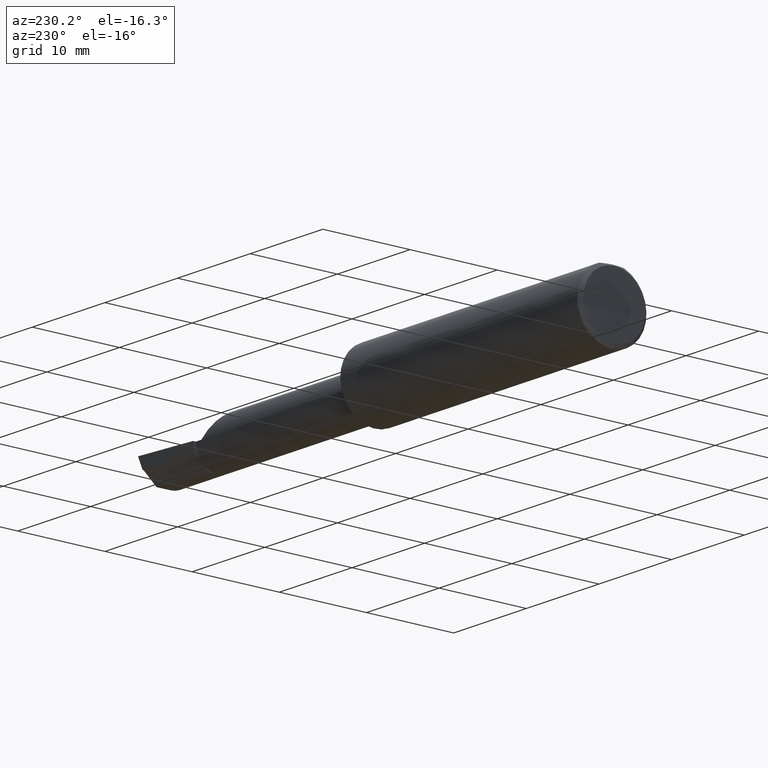
[diagram: clean part render]
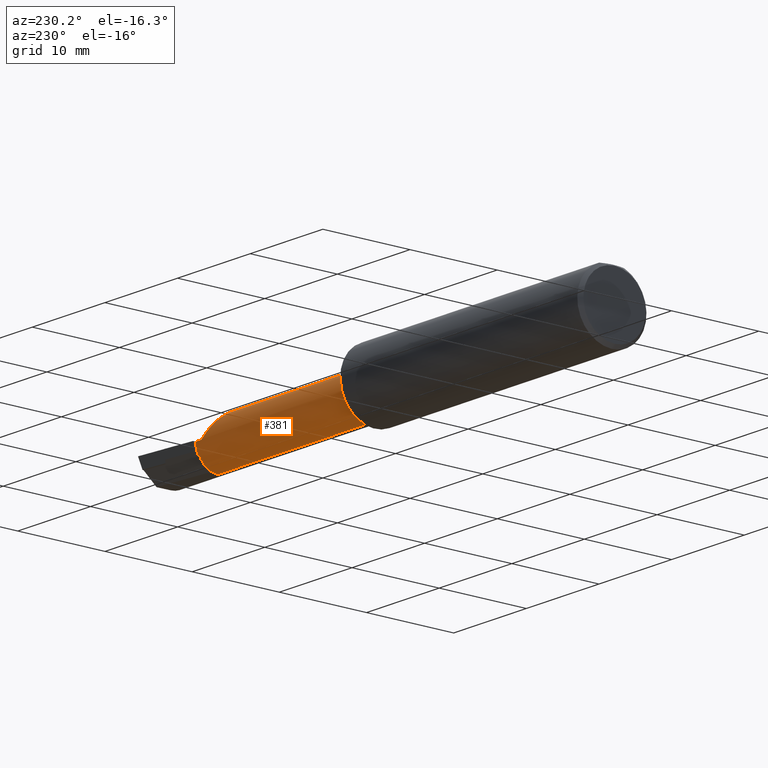
[diagram: same view with one face highlighted and labeled with its STEP entity id]
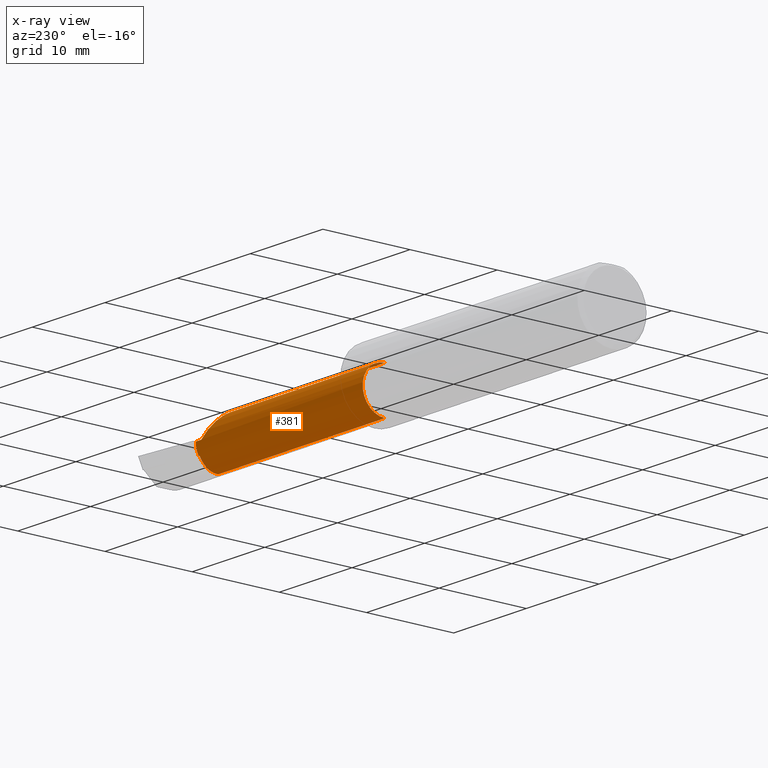
[diagram: x-ray of the same camera — body ghosted, the highlighted face saturated]
A machine part, auxiliary view. The second image highlights one B-rep face of the part: STEP entity #381.
The next image is the same camera in x-ray: the body ghosted, the highlighted face saturated — about 1% of this face is hidden behind the body in this view.
In plain terms, the highlighted cylindrical surface (edge-blend (fillet) strip) has radius 2.54 mm, axis along (-1, -0, -0).
Its self-contained STEP definition (entity closure, byte-faithful):
#1 = ORIENTED_EDGE ( 'NONE', *, *, #2, .F. ) ;
#2 = EDGE_CURVE ( 'NONE', #795, #684, #213, .T. ) ;
#7 = ORIENTED_EDGE ( 'NONE', *, *, #369, .T. ) ;
#26 = AXIS2_PLACEMENT_3D ( 'NONE', #1010, #722, #251 ) ;
#35 = DIRECTION ( 'NONE',  ( 0.000000000000000000, 0.000000000000000000, 1.000000000000000000 ) ) ;
#37 = CARTESIAN_POINT ( 'NONE',  ( 56.60650789487561951, -0.3438671563499280937, -2.160828660988213468 ) ) ;
#42 = VERTEX_POINT ( 'NONE', #823 ) ;
#47 = DIRECTION ( 'NONE',  ( -1.000000000000000000, -0.000000000000000000, -0.000000000000000000 ) ) ;
#93 = ORIENTED_EDGE ( 'NONE', *, *, #850, .F. ) ;
#107 = CIRCLE ( 'NONE', #810, 2.540000000000000036 ) ;
#111 = DIRECTION ( 'NONE',  ( -1.000000000000000000, -0.000000000000000000, -0.000000000000000000 ) ) ;
#119 = EDGE_CURVE ( 'NONE', #122, #863, #772, .T. ) ;
#122 = VERTEX_POINT ( 'NONE', #190 ) ;
#124 = CARTESIAN_POINT ( 'NONE',  ( 33.02000000000001023, -1.678939999999999433, 0.000000000000000000 ) ) ;
#130 = VERTEX_POINT ( 'NONE', #389 ) ;
#162 = DIRECTION ( 'NONE',  ( 1.000000000000000000, 0.000000000000000000, 0.000000000000000000 ) ) ;
#165 =( BOUNDED_CURVE ( )  B_SPLINE_CURVE ( 3, ( #621, #507, #216, #901 ),
 .UNSPECIFIED., .F., .F. ) 
 B_SPLINE_CURVE_WITH_KNOTS ( ( 4, 4 ),
 ( 4.479557257772967205, 4.982985725396996912 ),
 .UNSPECIFIED. ) 
 CURVE ( )  GEOMETRIC_REPRESENTATION_ITEM ( )  RATIONAL_B_SPLINE_CURVE ( ( 1.000000000000000000, 0.9789912600431243117, 0.9789912600431243117, 1.000000000000000000 ) ) 
 REPRESENTATION_ITEM ( '' )  );
#179 = CARTESIAN_POINT ( 'NONE',  ( 56.61843269633379094, -0.3410007964591664220, -2.159057674088894707 ) ) ;
#180 = EDGE_LOOP ( 'NONE', ( #1202, #183, #744, #322, #1, #943, #1216, #7, #224, #93, #1167 ) ) ;
#183 = ORIENTED_EDGE ( 'NONE', *, *, #827, .T. ) ;
#190 = CARTESIAN_POINT ( 'NONE',  ( 56.64199999999999591, -0.3352786765604253705, -2.155498607722263316 ) ) ;
#213 =( BOUNDED_CURVE ( )  B_SPLINE_CURVE ( 3, ( #255, #1007, #619, #719 ),
 .UNSPECIFIED., .F., .T. ) 
 B_SPLINE_CURVE_WITH_KNOTS ( ( 4, 4 ),
 ( 4.713388980551348695, 6.283185307179586232 ),
 .UNSPECIFIED. ) 
 CURVE ( )  GEOMETRIC_REPRESENTATION_ITEM ( )  RATIONAL_B_SPLINE_CURVE ( ( 1.000000000000000000, 0.8049734974886378902, 0.8049734974886378902, 1.000000000000000000 ) ) 
 REPRESENTATION_ITEM ( '' )  );
#216 = CARTESIAN_POINT ( 'NONE',  ( 56.54978564970318189, 0.3211662971372761799, -1.623811351964777883 ) ) ;
#217 = DIRECTION ( 'NONE',  ( -1.000000000000000000, -0.000000000000000000, -0.000000000000000000 ) ) ;
#224 = ORIENTED_EDGE ( 'NONE', *, *, #754, .F. ) ;
#239 = CARTESIAN_POINT ( 'NONE',  ( 56.64199999999999591, -1.678939999999999433, 0.000000000000000000 ) ) ;
#251 = DIRECTION ( 'NONE',  ( 0.000000000000000000, 0.000000000000000000, 1.000000000000000000 ) ) ;
#255 = CARTESIAN_POINT ( 'NONE',  ( 55.88000000000000256, 0.8610587299996853572, 0.002539999999979711265 ) ) ;
#266 = DIRECTION ( 'NONE',  ( 0.000000000000000000, 0.000000000000000000, -1.000000000000000000 ) ) ;
#270 = EDGE_CURVE ( 'NONE', #684, #609, #424, .T. ) ;
#313 = CARTESIAN_POINT ( 'NONE',  ( 55.88000000000000256, 0.8610587299996853572, 0.002539999999979711265 ) ) ;
#320 = CARTESIAN_POINT ( 'NONE',  ( 56.56308786096883523, 0.5274517890126302344, -1.258395895548295007 ) ) ;
#322 = ORIENTED_EDGE ( 'NONE', *, *, #270, .F. ) ;
#332 = AXIS2_PLACEMENT_3D ( 'NONE', #962, #111, #873 ) ;
#369 = EDGE_CURVE ( 'NONE', #666, #1072, #107, .T. ) ;
#372 = CARTESIAN_POINT ( 'NONE',  ( 55.88000000000000256, 0.8610600000000002696, -8.673617379884035472E-16 ) ) ;
#381 = ADVANCED_FACE ( 'NONE', ( #886 ), #980, .T. ) ;
#384 = CARTESIAN_POINT ( 'NONE',  ( 53.34253999999999252, -1.678939999999999433, 2.540000000000000036 ) ) ;
#389 = CARTESIAN_POINT ( 'NONE',  ( 56.64199999999999591, -1.678939999999999433, -2.540000000000000480 ) ) ;
#424 = LINE ( 'NONE', #613, #630 ) ;
#507 = CARTESIAN_POINT ( 'NONE',  ( 56.57853211268948712, 0.02262286437494908514, -1.934391978167296466 ) ) ;
#522 = CARTESIAN_POINT ( 'NONE',  ( 56.64199999999999591, 0.5162690332466178811, -1.277754788820004483 ) ) ;
#529 = EDGE_CURVE ( 'NONE', #934, #609, #910, .T. ) ;
#600 = CARTESIAN_POINT ( 'NONE',  ( 33.02000000000001023, -1.678939999999999211, -2.540000000000000036 ) ) ;
#609 = VERTEX_POINT ( 'NONE', #881 ) ;
#613 = CARTESIAN_POINT ( 'NONE',  ( 33.02000000000001023, -1.678939999999999433, 2.540000000000000036 ) ) ;
#619 = CARTESIAN_POINT ( 'NONE',  ( 53.34253999999997831, -0.1922219241183829586, 2.540000000000000036 ) ) ;
#621 = CARTESIAN_POINT ( 'NONE',  ( 56.60650789487561951, -0.3438671563499280937, -2.160828660988213468 ) ) ;
#622 = DIRECTION ( 'NONE',  ( 0.000000000000000000, 0.000000000000000000, 1.000000000000000000 ) ) ;
#630 = VECTOR ( 'NONE', #47, 1000.000000000000000 ) ;
#654 = DIRECTION ( 'NONE',  ( 1.000000000000000000, 0.000000000000000000, 0.000000000000000000 ) ) ;
#664 = CARTESIAN_POINT ( 'NONE',  ( 56.60650789487561951, -0.3438671563499280937, -2.160828660988213468 ) ) ;
#666 = VERTEX_POINT ( 'NONE', #1054 ) ;
#670 = CARTESIAN_POINT ( 'NONE',  ( 56.63026341365513616, -0.3381379660845350577, -2.157280987322184984 ) ) ;
#684 = VERTEX_POINT ( 'NONE', #384 ) ;
#692 = AXIS2_PLACEMENT_3D ( 'NONE', #732, #162, #266 ) ;
#717 = DIRECTION ( 'NONE',  ( -1.000000000000000000, -0.000000000000000000, -0.000000000000000000 ) ) ;
#719 = CARTESIAN_POINT ( 'NONE',  ( 53.34253999999999252, -1.678939999999999433, 2.540000000000000036 ) ) ;
#722 = DIRECTION ( 'NONE',  ( -1.000000000000000000, -0.000000000000000000, -0.000000000000000000 ) ) ;
#732 = CARTESIAN_POINT ( 'NONE',  ( 33.65500000000000114, -1.678939999999999433, 0.000000000000000000 ) ) ;
#744 = ORIENTED_EDGE ( 'NONE', *, *, #529, .T. ) ;
#754 = EDGE_CURVE ( 'NONE', #42, #1072, #1116, .T. ) ;
#772 =( BOUNDED_CURVE ( )  B_SPLINE_CURVE ( 3, ( #845, #670, #179, #664 ),
 .UNSPECIFIED., .F., .T. ) 
 B_SPLINE_CURVE_WITH_KNOTS ( ( 4, 4 ),
 ( 3.384715756874631332, 3.388695282948744669 ),
 .UNSPECIFIED. ) 
 CURVE ( )  GEOMETRIC_REPRESENTATION_ITEM ( )  RATIONAL_B_SPLINE_CURVE ( ( 1.000000000000000000, 0.9999986802814542219, 0.9999986802814542219, 1.000000000000000000 ) ) 
 REPRESENTATION_ITEM ( '' )  );
#795 = VERTEX_POINT ( 'NONE', #313 ) ;
#802 = CARTESIAN_POINT ( 'NONE',  ( 56.60306167935598154, 0.5218923600378183592, -1.268093797621262731 ) ) ;
#810 = AXIS2_PLACEMENT_3D ( 'NONE', #239, #217, #622 ) ;
#823 = CARTESIAN_POINT ( 'NONE',  ( 56.52208028681336316, 0.5329470779028427918, -1.248661505215254097 ) ) ;
#827 = EDGE_CURVE ( 'NONE', #130, #934, #1198, .T. ) ;
#845 = CARTESIAN_POINT ( 'NONE',  ( 56.64199999999999591, -0.3352786765604253705, -2.155498607722263316 ) ) ;
#848 = LINE ( 'NONE', #1217, #1071 ) ;
#850 = EDGE_CURVE ( 'NONE', #863, #42, #165, .T. ) ;
#863 = VERTEX_POINT ( 'NONE', #37 ) ;
#873 = DIRECTION ( 'NONE',  ( 0.000000000000000000, 0.000000000000000000, 1.000000000000000000 ) ) ;
#881 = CARTESIAN_POINT ( 'NONE',  ( 33.65500000000000114, -1.678939999999999433, 2.540000000000000036 ) ) ;
#886 = FACE_OUTER_BOUND ( 'NONE', #180, .T. ) ;
#896 = DIRECTION ( 'NONE',  ( -1.000000000000000000, -0.000000000000000000, -0.000000000000000000 ) ) ;
#901 = CARTESIAN_POINT ( 'NONE',  ( 56.52208028681336316, 0.5329470779028427918, -1.248661505215254097 ) ) ;
#910 = CIRCLE ( 'NONE', #692, 2.540000000000000036 ) ;
#934 = VERTEX_POINT ( 'NONE', #1209 ) ;
#943 = ORIENTED_EDGE ( 'NONE', *, *, #1233, .T. ) ;
#953 = EDGE_CURVE ( 'NONE', #1145, #666, #848, .T. ) ;
#962 = CARTESIAN_POINT ( 'NONE',  ( 55.88000000000000256, -1.678939999999999433, 0.000000000000000000 ) ) ;
#967 = CIRCLE ( 'NONE', #332, 2.540000000000000036 ) ;
#980 = CYLINDRICAL_SURFACE ( 'NONE', #1024, 2.540000000000000036 ) ;
#991 = CARTESIAN_POINT ( 'NONE',  ( 56.52208028681336316, 0.5329470779028427918, -1.248661505215254097 ) ) ;
#1004 = CIRCLE ( 'NONE', #26, 2.540000000000000036 ) ;
#1007 = CARTESIAN_POINT ( 'NONE',  ( 54.39328266747760665, 0.8595720119238138279, 1.489257332522372135 ) ) ;
#1010 = CARTESIAN_POINT ( 'NONE',  ( 56.64199999999999591, -1.678939999999999433, 0.000000000000000000 ) ) ;
#1024 = AXIS2_PLACEMENT_3D ( 'NONE', #124, #896, #35 ) ;
#1054 = CARTESIAN_POINT ( 'NONE',  ( 56.64199999999999591, 0.8610600000000002696, -8.673617379884035472E-16 ) ) ;
#1055 = EDGE_CURVE ( 'NONE', #122, #130, #1004, .T. ) ;
#1071 = VECTOR ( 'NONE', #654, 1000.000000000000000 ) ;
#1072 = VERTEX_POINT ( 'NONE', #1103 ) ;
#1103 = CARTESIAN_POINT ( 'NONE',  ( 56.64199999999999591, 0.5162690332466178811, -1.277754788820004483 ) ) ;
#1116 =( BOUNDED_CURVE ( )  B_SPLINE_CURVE ( 3, ( #991, #320, #802, #522 ),
 .UNSPECIFIED., .F., .T. ) 
 B_SPLINE_CURVE_WITH_KNOTS ( ( 4, 4 ),
 ( 2.885266815324716294, 2.898469550304955344 ),
 .UNSPECIFIED. ) 
 CURVE ( )  GEOMETRIC_REPRESENTATION_ITEM ( )  RATIONAL_B_SPLINE_CURVE ( ( 1.000000000000000000, 0.9999854740351713511, 0.9999854740351713511, 1.000000000000000000 ) ) 
 REPRESENTATION_ITEM ( '' )  );
#1145 = VERTEX_POINT ( 'NONE', #372 ) ;
#1167 = ORIENTED_EDGE ( 'NONE', *, *, #119, .F. ) ;
#1198 = LINE ( 'NONE', #600, #1211 ) ;
#1202 = ORIENTED_EDGE ( 'NONE', *, *, #1055, .T. ) ;
#1209 = CARTESIAN_POINT ( 'NONE',  ( 33.65500000000000114, -1.678939999999999211, -2.540000000000000036 ) ) ;
#1211 = VECTOR ( 'NONE', #717, 1000.000000000000000 ) ;
#1216 = ORIENTED_EDGE ( 'NONE', *, *, #953, .T. ) ;
#1217 = CARTESIAN_POINT ( 'NONE',  ( 33.02000000000001023, 0.8610600000000002696, -8.673617379884035472E-16 ) ) ;
#1233 = EDGE_CURVE ( 'NONE', #795, #1145, #967, .T. ) ;